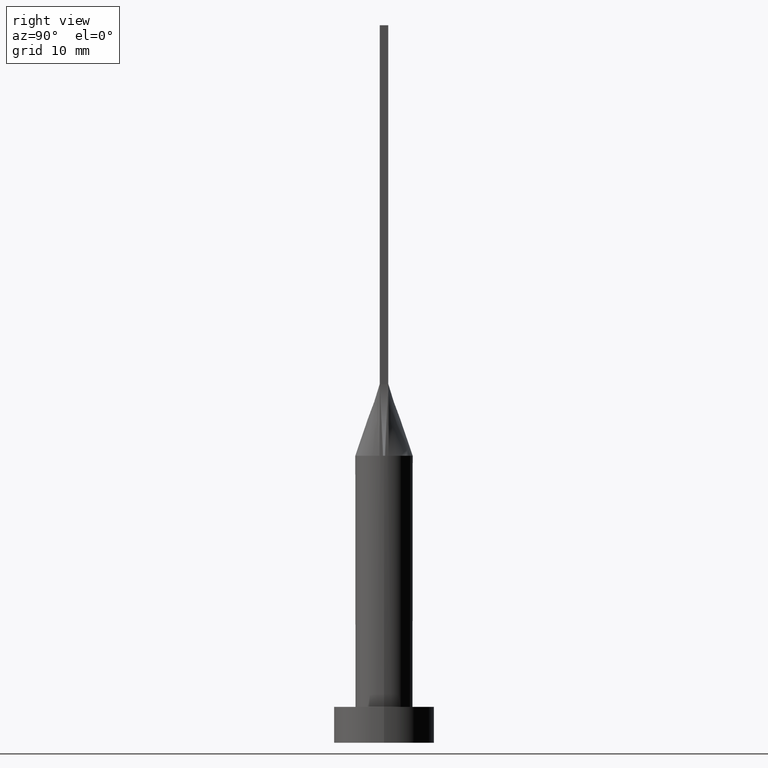
[diagram: clean part render]
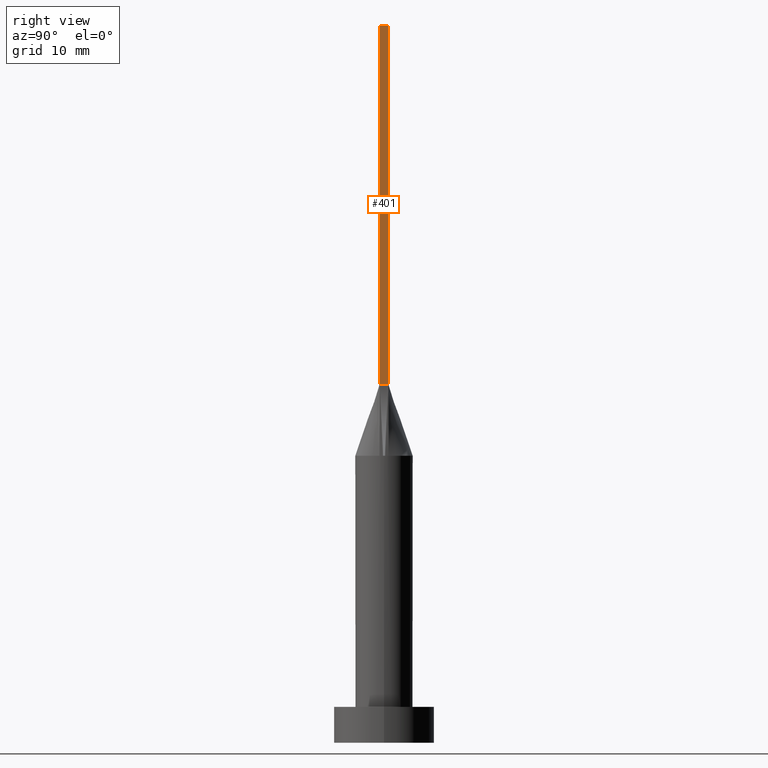
[diagram: same view with one face highlighted and labeled with its STEP entity id]
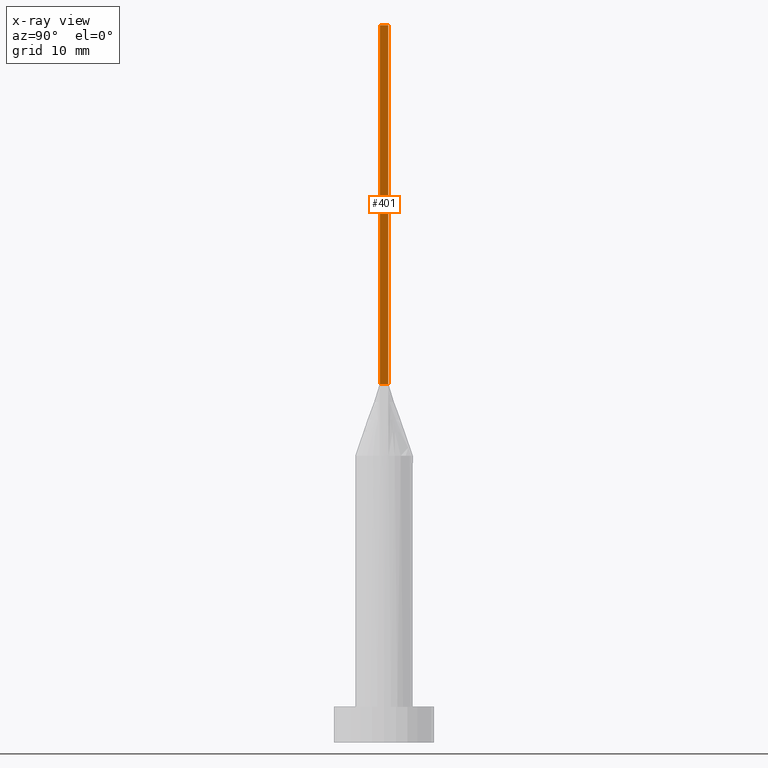
[diagram: x-ray of the same camera — body ghosted, the highlighted face saturated]
A machine part, right view. The second image highlights one B-rep face of the part: STEP entity #401.
The next image is the same camera in x-ray: the body ghosted, the highlighted face saturated — about 0% of this face is hidden behind the body in this view.
In plain terms, the highlighted planar face has unit normal (-1, 0, 0).
Its self-contained STEP definition (entity closure, byte-faithful):
#5 = CARTESIAN_POINT ( 'NONE',  ( 3.750000000000000000, -0.5999999999999997558, 100.0000000000000000 ) ) ;
#47 = LINE ( 'NONE', #5, #467 ) ;
#52 = DIRECTION ( 'NONE',  ( -0.000000000000000000, 1.000000000000000000, -0.000000000000000000 ) ) ;
#74 = VERTEX_POINT ( 'NONE', #574 ) ;
#78 = VERTEX_POINT ( 'NONE', #384 ) ;
#79 = LINE ( 'NONE', #251, #185 ) ;
#81 = ORIENTED_EDGE ( 'NONE', *, *, #220, .T. ) ;
#82 = CARTESIAN_POINT ( 'NONE',  ( 3.750000000000000000, -0.5999999999999997558, 100.0000000000000000 ) ) ;
#95 = DIRECTION ( 'NONE',  ( 0.000000000000000000, 0.000000000000000000, 1.000000000000000000 ) ) ;
#133 = EDGE_LOOP ( 'NONE', ( #81, #371, #205, #517 ) ) ;
#143 = LINE ( 'NONE', #322, #445 ) ;
#175 = CARTESIAN_POINT ( 'NONE',  ( 3.750000000000000000, -0.5999999999999997558, 100.0000000000000000 ) ) ;
#185 = VECTOR ( 'NONE', #405, 1000.000000000000000 ) ;
#205 = ORIENTED_EDGE ( 'NONE', *, *, #304, .F. ) ;
#220 = EDGE_CURVE ( 'NONE', #74, #78, #297, .T. ) ;
#251 = CARTESIAN_POINT ( 'NONE',  ( 3.750000000000000000, 0.6000000000000001998, 100.0000000000000000 ) ) ;
#265 = PLANE ( 'NONE',  #578 ) ;
#297 = LINE ( 'NONE', #483, #495 ) ;
#304 = EDGE_CURVE ( 'NONE', #570, #348, #143, .T. ) ;
#322 = CARTESIAN_POINT ( 'NONE',  ( 3.750000000000000000, -0.5999999999999997558, 100.0000000000000000 ) ) ;
#341 = CARTESIAN_POINT ( 'NONE',  ( 3.750000000000000000, 0.6000000000000001998, 100.0000000000000000 ) ) ;
#348 = VERTEX_POINT ( 'NONE', #341 ) ;
#355 = DIRECTION ( 'NONE',  ( -1.000000000000000000, 0.000000000000000000, 0.000000000000000000 ) ) ;
#371 = ORIENTED_EDGE ( 'NONE', *, *, #383, .F. ) ;
#383 = EDGE_CURVE ( 'NONE', #348, #78, #79, .T. ) ;
#384 = CARTESIAN_POINT ( 'NONE',  ( 3.750000000000000000, 0.6000000000000001998, 50.00000000000000000 ) ) ;
#395 = EDGE_CURVE ( 'NONE', #570, #74, #47, .T. ) ;
#401 = ADVANCED_FACE ( 'NONE', ( #402 ), #265, .F. ) ;
#402 = FACE_OUTER_BOUND ( 'NONE', #133, .T. ) ;
#405 = DIRECTION ( 'NONE',  ( -0.000000000000000000, -0.000000000000000000, -1.000000000000000000 ) ) ;
#445 = VECTOR ( 'NONE', #519, 1000.000000000000000 ) ;
#467 = VECTOR ( 'NONE', #492, 1000.000000000000000 ) ;
#483 = CARTESIAN_POINT ( 'NONE',  ( 3.750000000000000000, 0.6000000000000001998, 50.00000000000000000 ) ) ;
#492 = DIRECTION ( 'NONE',  ( -0.000000000000000000, -0.000000000000000000, -1.000000000000000000 ) ) ;
#495 = VECTOR ( 'NONE', #52, 1000.000000000000000 ) ;
#517 = ORIENTED_EDGE ( 'NONE', *, *, #395, .T. ) ;
#519 = DIRECTION ( 'NONE',  ( 0.000000000000000000, 1.000000000000000000, 0.000000000000000000 ) ) ;
#570 = VERTEX_POINT ( 'NONE', #82 ) ;
#574 = CARTESIAN_POINT ( 'NONE',  ( 3.750000000000000000, -0.5999999999999997558, 50.00000000000000000 ) ) ;
#578 = AXIS2_PLACEMENT_3D ( 'NONE', #175, #355, #95 ) ;